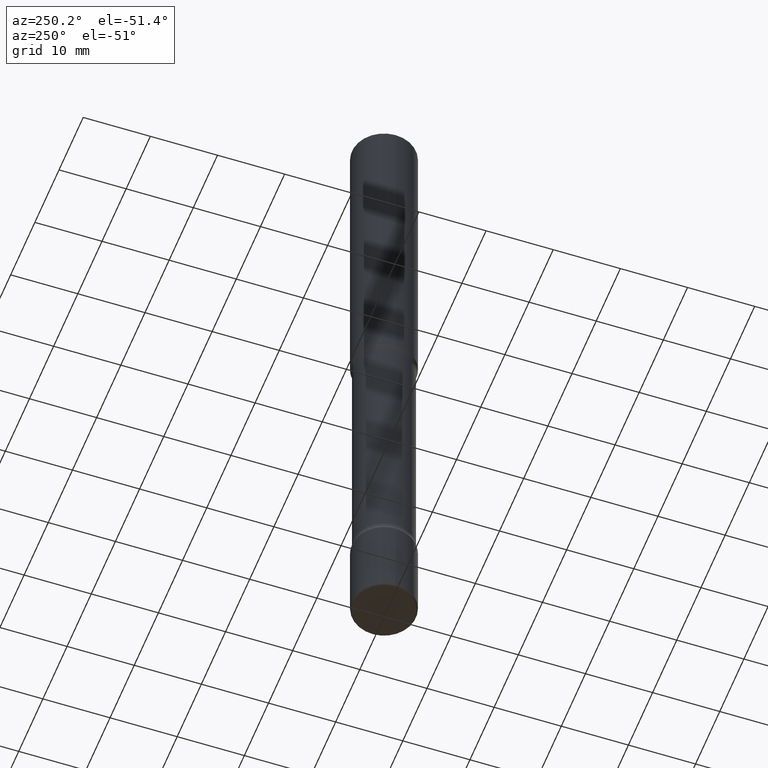
[diagram: clean part render]
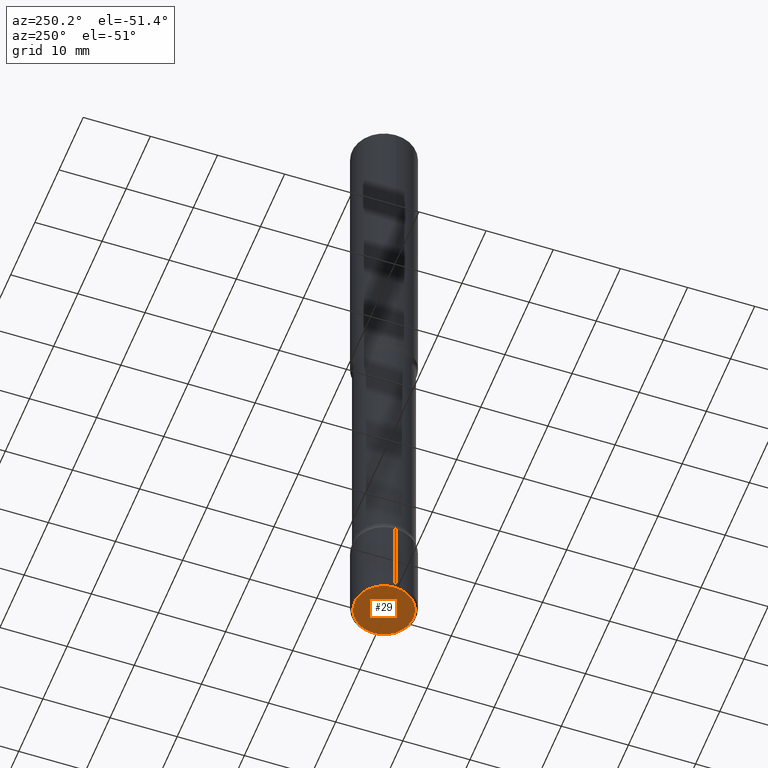
[diagram: same view with one face highlighted and labeled with its STEP entity id]
A machine part, auxiliary view. The second image highlights one B-rep face of the part: STEP entity #29.
In plain terms, the highlighted planar face has unit normal (0, -0, -1).
Its self-contained STEP definition (entity closure, byte-faithful):
#10 = DIRECTION ( 'NONE',  ( 1.000000000000000000, -6.982962677686270655E-15, 0.000000000000000000 ) ) ;
#29 = ADVANCED_FACE ( 'NONE', ( #387 ), #441, .T. ) ;
#54 = CARTESIAN_POINT ( 'NONE',  ( 9.781875224740546387E-29, -1.396592535537258233E-14, -4.000000000000000000 ) ) ;
#162 = VERTEX_POINT ( 'NONE', #404 ) ;
#206 = EDGE_CURVE ( 'NONE', #512, #162, #317, .T. ) ;
#217 = AXIS2_PLACEMENT_3D ( 'NONE', #54, #369, #10 ) ;
#232 = EDGE_CURVE ( 'NONE', #162, #512, #345, .T. ) ;
#241 = CARTESIAN_POINT ( 'NONE',  ( 1.862889787094097068E-28, -1.296485384755703517E-15, -4.000000000000000000 ) ) ;
#260 = DIRECTION ( 'NONE',  ( -2.445468806185136597E-29, 3.491481338843145583E-15, 1.000000000000000000 ) ) ;
#261 = AXIS2_PLACEMENT_3D ( 'NONE', #241, #433, #549 ) ;
#275 = AXIS2_PLACEMENT_3D ( 'NONE', #445, #260, #527 ) ;
#317 = CIRCLE ( 'NONE', #217, 0.1725000000000000699 ) ;
#345 = CIRCLE ( 'NONE', #275, 0.1725000000000000699 ) ;
#369 = DIRECTION ( 'NONE',  ( -2.445468806185136597E-29, 3.491481338843145583E-15, 1.000000000000000000 ) ) ;
#387 = FACE_OUTER_BOUND ( 'NONE', #464, .T. ) ;
#390 = ORIENTED_EDGE ( 'NONE', *, *, #206, .F. ) ;
#404 = CARTESIAN_POINT ( 'NONE',  ( -0.1725000000000000699, -1.266076232096307910E-14, -4.000000000000000000 ) ) ;
#433 = DIRECTION ( 'NONE',  ( 2.438088387897960049E-29, -3.491481338843145188E-15, -1.000000000000000000 ) ) ;
#441 = PLANE ( 'NONE',  #261 ) ;
#445 = CARTESIAN_POINT ( 'NONE',  ( 9.781875224740546387E-29, -1.396592535537258233E-14, -4.000000000000000000 ) ) ;
#464 = EDGE_LOOP ( 'NONE', ( #390, #472 ) ) ;
#471 = CARTESIAN_POINT ( 'NONE',  ( 0.1725000000000000699, -1.517048641727346397E-14, -4.000000000000000000 ) ) ;
#472 = ORIENTED_EDGE ( 'NONE', *, *, #232, .F. ) ;
#512 = VERTEX_POINT ( 'NONE', #471 ) ;
#527 = DIRECTION ( 'NONE',  ( 1.000000000000000000, -6.982962677686270655E-15, 0.000000000000000000 ) ) ;
#549 = DIRECTION ( 'NONE',  ( -1.000000000000000000, 6.982962677686265922E-15, -4.876176775795935793E-29 ) ) ;